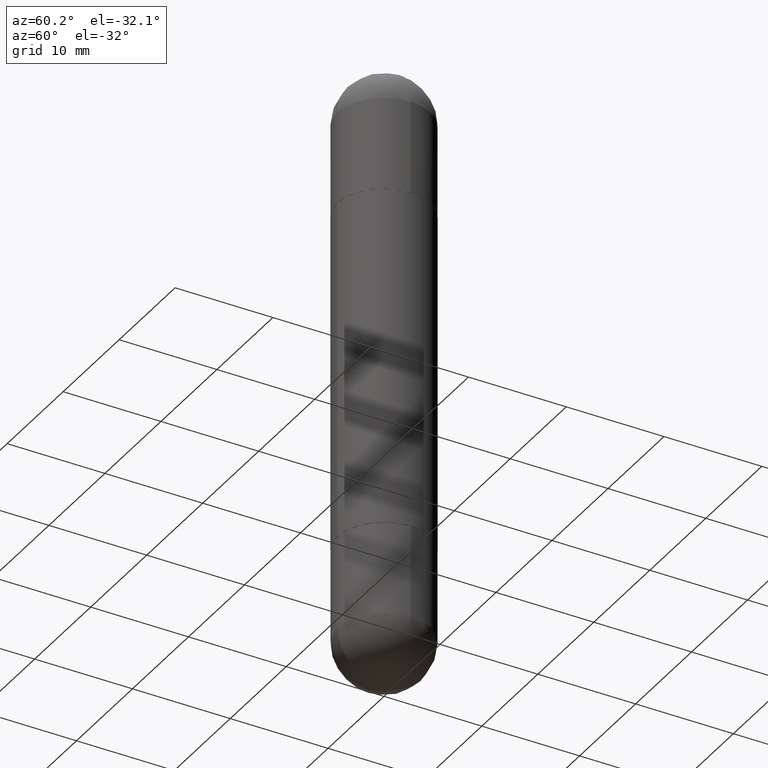
[diagram: clean part render]
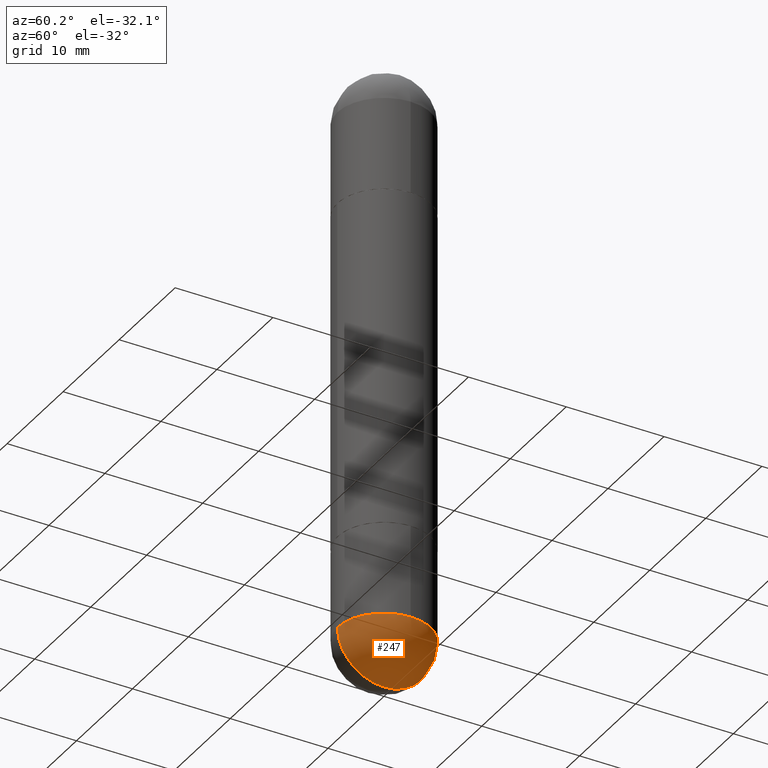
[diagram: same view with one face highlighted and labeled with its STEP entity id]
A machine part, auxiliary view. The second image highlights one B-rep face of the part: STEP entity #247.
In plain terms, the highlighted spherical surface has radius 4.7625 mm.
Its self-contained STEP definition (entity closure, byte-faithful):
#31 = CARTESIAN_POINT ( 'NONE',  ( -1.332267629550134009E-15, -0.1875000000000084932, -2.312499999999999556 ) ) ;
#35 = EDGE_CURVE ( 'NONE', #200, #319, #604, .T. ) ;
#38 = ORIENTED_EDGE ( 'NONE', *, *, #790, .T. ) ;
#43 = AXIS2_PLACEMENT_3D ( 'NONE', #708, #586, #343 ) ;
#53 = CARTESIAN_POINT ( 'NONE',  ( 0.1875000000000000555, -8.729576217442571356E-15, -2.312500000000000000 ) ) ;
#100 = DIRECTION ( 'NONE',  ( 6.982962677686265922E-15, 1.000000000000000000, 0.000000000000000000 ) ) ;
#101 = SPHERICAL_SURFACE ( 'NONE', #659, 0.1875000000000003331 ) ;
#102 = VERTEX_POINT ( 'NONE', #467 ) ;
#112 = EDGE_CURVE ( 'NONE', #711, #200, #339, .T. ) ;
#121 = DIRECTION ( 'NONE',  ( 1.000000000000000000, -6.982962677686265922E-15, 4.883557194083112340E-29 ) ) ;
#172 = CIRCLE ( 'NONE', #426, 0.1875000000000003331 ) ;
#194 = DIRECTION ( 'NONE',  ( -2.445468806185136597E-29, 3.491481338843145583E-15, 1.000000000000000000 ) ) ;
#200 = VERTEX_POINT ( 'NONE', #31 ) ;
#209 = DIRECTION ( 'NONE',  ( 1.000000000000000000, -6.982962677686270655E-15, 0.000000000000000000 ) ) ;
#225 = DIRECTION ( 'NONE',  ( -1.000000000000000000, 6.982962677686266711E-15, -4.883557194083113462E-29 ) ) ;
#238 = CARTESIAN_POINT ( 'NONE',  ( 5.655146614303128380E-29, -8.074050596074775072E-15, -2.312500000000000000 ) ) ;
#247 = ADVANCED_FACE ( 'NONE', ( #286 ), #101, .T. ) ;
#286 = FACE_OUTER_BOUND ( 'NONE', #648, .T. ) ;
#319 = VERTEX_POINT ( 'NONE', #53 ) ;
#339 = CIRCLE ( 'NONE', #43, 0.1875000000000003331 ) ;
#343 = DIRECTION ( 'NONE',  ( -7.105427357600999492E-15, -1.000000000000000000, 0.000000000000000000 ) ) ;
#400 = EDGE_CURVE ( 'NONE', #319, #102, #710, .T. ) ;
#402 = AXIS2_PLACEMENT_3D ( 'NONE', #448, #194, #209 ) ;
#426 = AXIS2_PLACEMENT_3D ( 'NONE', #620, #121, #100 ) ;
#432 = AXIS2_PLACEMENT_3D ( 'NONE', #238, #634, #749 ) ;
#448 = CARTESIAN_POINT ( 'NONE',  ( 5.655146614303128380E-29, -8.074050596074775072E-15, -2.312500000000000000 ) ) ;
#467 = CARTESIAN_POINT ( 'NONE',  ( 1.309305502066231017E-15, 0.1874999999999918954, -2.312500000000000444 ) ) ;
#476 = CARTESIAN_POINT ( 'NONE',  ( 5.790569421510013204E-29, -9.191404651505909607E-15, -2.500000000000000000 ) ) ;
#544 = CARTESIAN_POINT ( 'NONE',  ( 5.324026836389243254E-29, -8.548232964214825368E-15, -2.312500000000000000 ) ) ;
#577 = ORIENTED_EDGE ( 'NONE', *, *, #112, .F. ) ;
#586 = DIRECTION ( 'NONE',  ( -1.000000000000000000, 7.105427357601001070E-15, -4.926315508542082329E-29 ) ) ;
#604 = CIRCLE ( 'NONE', #402, 0.1875000000000000555 ) ;
#620 = CARTESIAN_POINT ( 'NONE',  ( 5.324026836389243254E-29, -8.548232964214825368E-15, -2.312500000000000000 ) ) ;
#634 = DIRECTION ( 'NONE',  ( -2.445468806185136597E-29, 3.491481338843145583E-15, 1.000000000000000000 ) ) ;
#645 = ORIENTED_EDGE ( 'NONE', *, *, #35, .F. ) ;
#648 = EDGE_LOOP ( 'NONE', ( #577, #38, #655, #645 ) ) ;
#655 = ORIENTED_EDGE ( 'NONE', *, *, #400, .F. ) ;
#659 = AXIS2_PLACEMENT_3D ( 'NONE', #544, #225, #786 ) ;
#708 = CARTESIAN_POINT ( 'NONE',  ( 5.324026836389243254E-29, -8.548232964214825368E-15, -2.312500000000000000 ) ) ;
#710 = CIRCLE ( 'NONE', #432, 0.1875000000000000555 ) ;
#711 = VERTEX_POINT ( 'NONE', #476 ) ;
#749 = DIRECTION ( 'NONE',  ( 1.000000000000000000, -6.982962677686270655E-15, 0.000000000000000000 ) ) ;
#786 = DIRECTION ( 'NONE',  ( 6.982962677686266711E-15, 1.000000000000000000, -2.913971193241875639E-15 ) ) ;
#790 = EDGE_CURVE ( 'NONE', #711, #102, #172, .T. ) ;